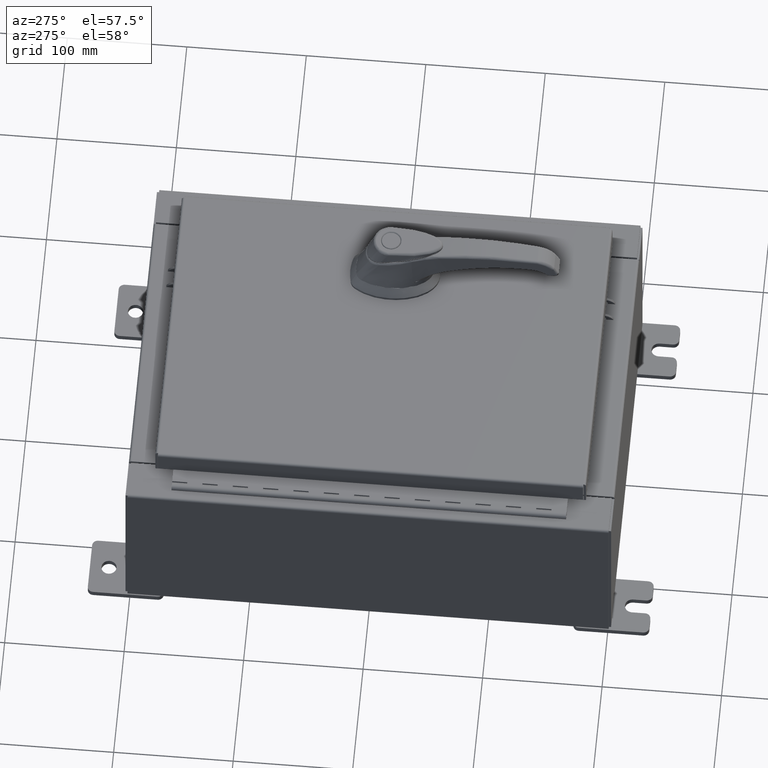
[diagram: clean part render]
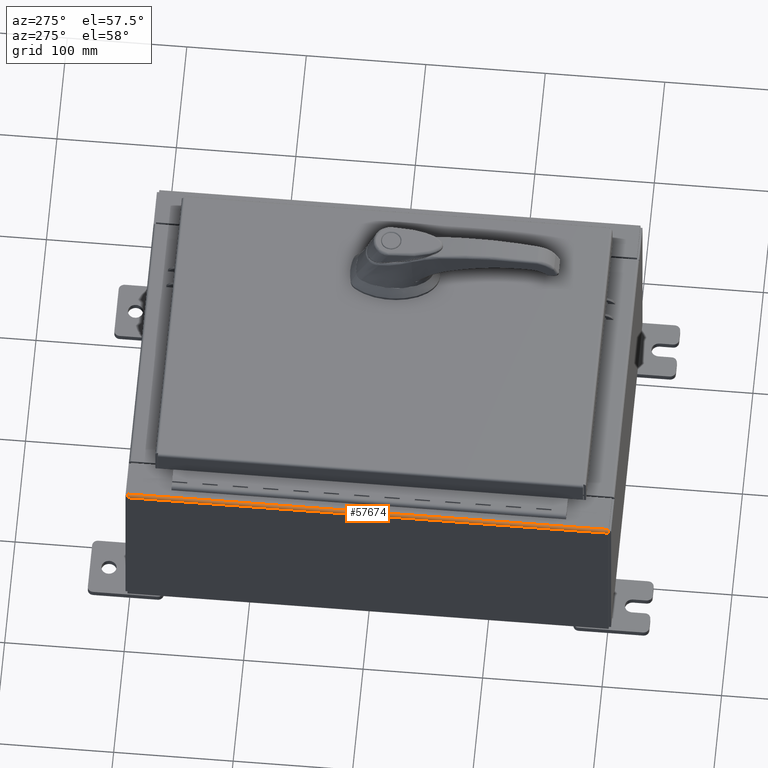
[diagram: same view with one face highlighted and labeled with its STEP entity id]
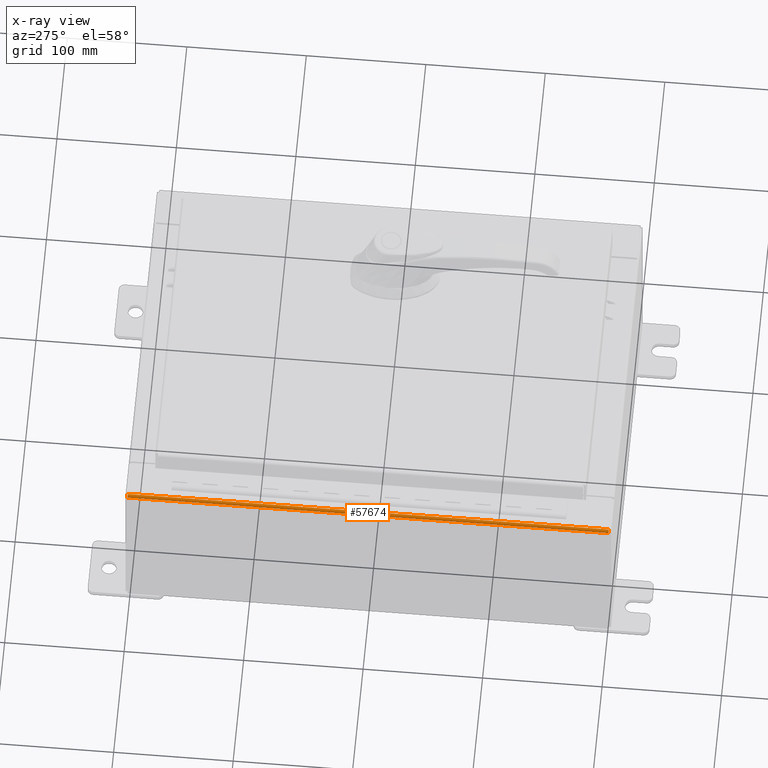
[diagram: x-ray of the same camera — body ghosted, the highlighted face saturated]
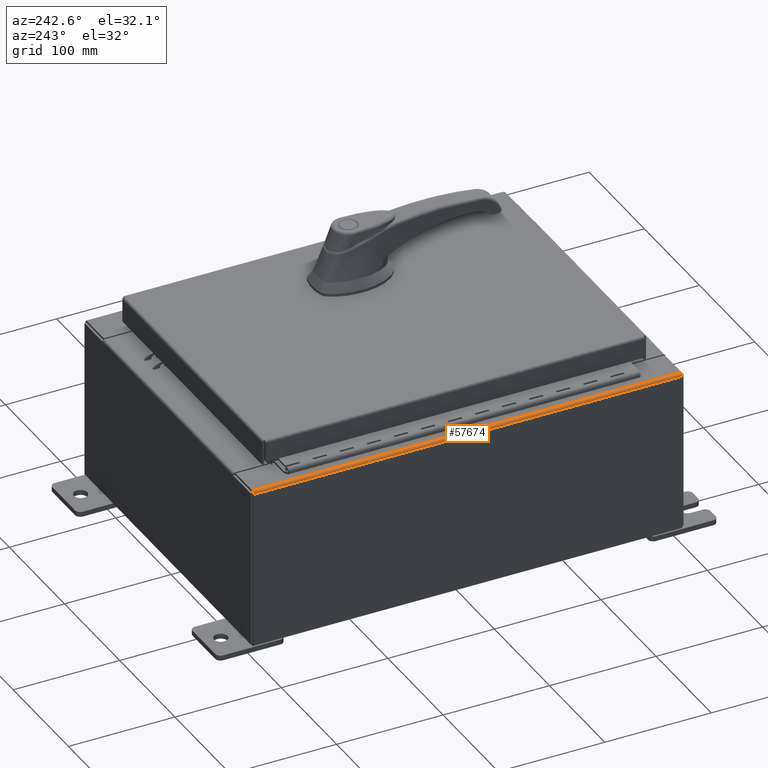
[diagram: same view with one face highlighted and labeled with its STEP entity id]
A machine part, auxiliary view. The second image highlights one B-rep face of the part: STEP entity #57674.
The next image is the same camera in x-ray: the body ghosted, the highlighted face saturated — about 0% of this face is hidden behind the body in this view.
A second angle (auxiliary view) of the same face is appended — the face is thin or edge-on in the first view.
In plain terms, the highlighted cylindrical surface (edge-blend (fillet) strip) has radius 2.2276 mm, axis along (-0, -1, -0).
Its self-contained STEP definition (entity closure, byte-faithful):
#401 = CARTESIAN_POINT ( 'NONE',  ( -5.912300000000023200, -7.925300000000000900, 5.837599999999999200 ) ) ;
#814 = EDGE_CURVE ( 'NONE', #6574, #3272, #56044, .T. ) ;
#2270 = CARTESIAN_POINT ( 'NONE',  ( -5.912300000000023200, -7.925300000000000000, 5.837599999999999200 ) ) ;
#3272 = VERTEX_POINT ( 'NONE', #73745 ) ;
#6574 = VERTEX_POINT ( 'NONE', #42334 ) ;
#10548 = DIRECTION ( 'NONE',  ( 0.0000000000000000000, 0.0000000000000000000, -1.000000000000000000 ) ) ;
#14804 = EDGE_CURVE ( 'NONE', #45661, #3272, #101770, .T. ) ;
#16691 = CIRCLE ( 'NONE', #71264, 0.08770000000000026400 ) ;
#16751 = AXIS2_PLACEMENT_3D ( 'NONE', #35880, #93787, #44176 ) ;
#20046 = CYLINDRICAL_SURFACE ( 'NONE', #46181, 0.08770000000000026400 ) ;
#21929 = ORIENTED_EDGE ( 'NONE', *, *, #59570, .F. ) ;
#25427 = CARTESIAN_POINT ( 'NONE',  ( -6.000000000000022200, 7.925299999999998200, 5.837599999999999200 ) ) ;
#28087 = VERTEX_POINT ( 'NONE', #70363 ) ;
#29647 = DIRECTION ( 'NONE',  ( 6.893992640440775600E-017, 1.000000000000000000, 4.917321139196952400E-031 ) ) ;
#30198 = DIRECTION ( 'NONE',  ( 0.0000000000000000000, 1.000000000000000000, 0.0000000000000000000 ) ) ;
#35880 = CARTESIAN_POINT ( 'NONE',  ( -5.912300000000023200, 7.925299999999998200, 5.837599999999999200 ) ) ;
#40567 = DIRECTION ( 'NONE',  ( -1.245996804407870000E-014, 0.0000000000000000000, 1.000000000000000000 ) ) ;
#41608 = DIRECTION ( 'NONE',  ( -0.0000000000000000000, -1.000000000000000000, -0.0000000000000000000 ) ) ;
#42334 = CARTESIAN_POINT ( 'NONE',  ( -5.912300000000023200, -7.925300000000000000, 5.925299999999999100 ) ) ;
#44176 = DIRECTION ( 'NONE',  ( 0.0000000000000000000, 0.0000000000000000000, -1.000000000000000000 ) ) ;
#45661 = VERTEX_POINT ( 'NONE', #25427 ) ;
#46181 = AXIS2_PLACEMENT_3D ( 'NONE', #401, #41608, #40567 ) ;
#46979 = LINE ( 'NONE', #104801, #85845 ) ;
#52649 = ORIENTED_EDGE ( 'NONE', *, *, #14804, .F. ) ;
#56044 = LINE ( 'NONE', #70902, #61264 ) ;
#57674 = ADVANCED_FACE ( 'NONE', ( #88648 ), #20046, .T. ) ;
#59570 = EDGE_CURVE ( 'NONE', #28087, #45661, #46979, .T. ) ;
#60154 = DIRECTION ( 'NONE',  ( -0.0000000000000000000, -1.000000000000000000, -0.0000000000000000000 ) ) ;
#61264 = VECTOR ( 'NONE', #29647, 39.37007874015748100 ) ;
#65758 = EDGE_CURVE ( 'NONE', #6574, #28087, #16691, .T. ) ;
#70363 = CARTESIAN_POINT ( 'NONE',  ( -6.000000000000023100, -7.925300000000000000, 5.837599999999999200 ) ) ;
#70902 = CARTESIAN_POINT ( 'NONE',  ( -5.912300000000022300, 7.925299999999998200, 5.925299999999999100 ) ) ;
#71264 = AXIS2_PLACEMENT_3D ( 'NONE', #2270, #60154, #10548 ) ;
#73745 = CARTESIAN_POINT ( 'NONE',  ( -5.912300000000023200, 7.925299999999998200, 5.925299999999999100 ) ) ;
#85845 = VECTOR ( 'NONE', #30198, 39.37007874015748100 ) ;
#88648 = FACE_OUTER_BOUND ( 'NONE', #104024, .T. ) ;
#93787 = DIRECTION ( 'NONE',  ( 0.0000000000000000000, 1.000000000000000000, 0.0000000000000000000 ) ) ;
#96311 = ORIENTED_EDGE ( 'NONE', *, *, #65758, .F. ) ;
#99650 = ORIENTED_EDGE ( 'NONE', *, *, #814, .T. ) ;
#101770 = CIRCLE ( 'NONE', #16751, 0.08770000000000026400 ) ;
#104024 = EDGE_LOOP ( 'NONE', ( #21929, #96311, #99650, #52649 ) ) ;
#104801 = CARTESIAN_POINT ( 'NONE',  ( -6.000000000000023100, -7.925300000000000900, 5.837599999999999200 ) ) ;